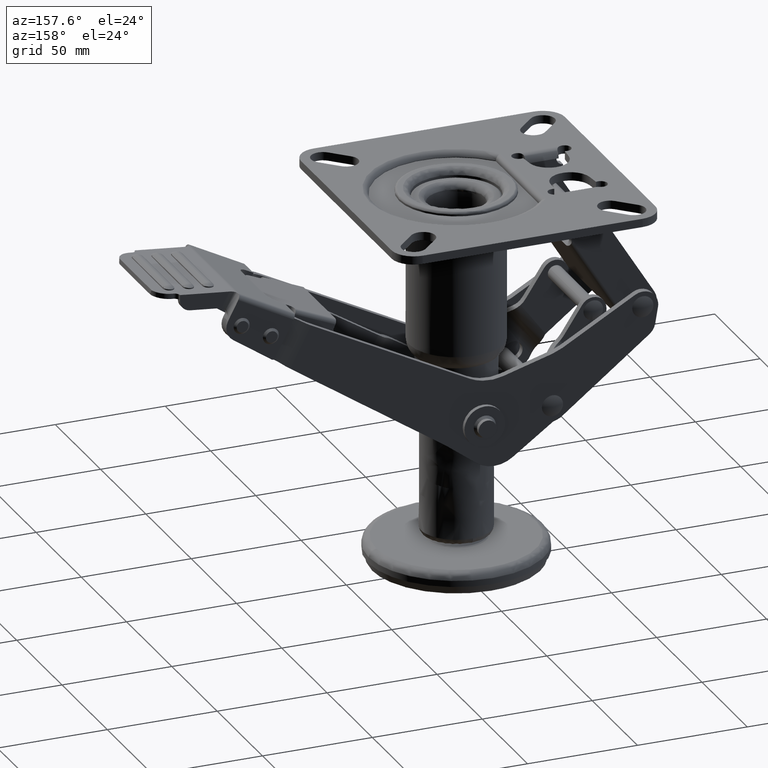
[diagram: clean part render]
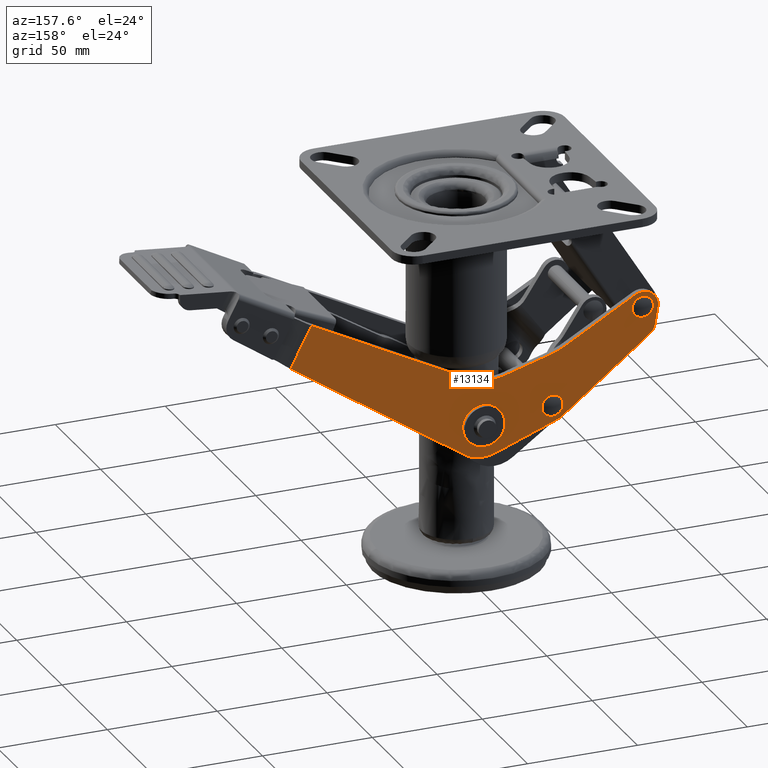
[diagram: same view with one face highlighted and labeled with its STEP entity id]
A machine part, auxiliary view. The second image highlights one B-rep face of the part: STEP entity #13134.
In plain terms, the highlighted face is a freeform B-spline surface patch.
Its self-contained STEP definition (entity closure, byte-faithful):
#2957=CARTESIAN_POINT('',(7.062890213858831,29.500000000000000,-103.373108324120100));
#2958=VERTEX_POINT('',#2957);
#2964=CARTESIAN_POINT('',(0.0,29.500000000000000,-106.649994000000010));
#2965=VERTEX_POINT('',#2964);
#2966=CARTESIAN_POINT('',(7.062890213858831,29.500000000000000,-103.373108324120100));
#2967=CARTESIAN_POINT('',(6.549512193716681,29.500000000000039,-103.980510018220200));
#2968=CARTESIAN_POINT('',(5.395922455383997,29.499999999999890,-105.032994321612410));
#2969=CARTESIAN_POINT('',(3.013068776690119,29.500000000000249,-106.300303740287700));
#2970=CARTESIAN_POINT('',(1.130280303283462,29.499999999999709,-106.651000111019900));
#2971=CARTESIAN_POINT('',(0.0,29.500000000000000,-106.649994000000010));
#2972=B_SPLINE_CURVE_WITH_KNOTS('',3,(#2966,#2967,#2968,#2969,#2970,#2971),.UNSPECIFIED.,.F.,.U.,(4,1,1,4),(0.000000094406132,2.385839442849486,4.646058014318029,8.036476991607966),.UNSPECIFIED.);
#2973=EDGE_CURVE('',#2958,#2965,#2972,.T.);
#2975=CARTESIAN_POINT('',(-9.249999999999568,29.500000000000000,-97.399991171106024));
#2976=VERTEX_POINT('',#2975);
#2977=CARTESIAN_POINT('',(0.0,29.500000000000000,-106.649994000000010));
#2978=CARTESIAN_POINT('',(-1.097428028790853,29.500000000000000,-106.650896840088810));
#2979=CARTESIAN_POINT('',(-2.988711835484776,29.500000000000028,-106.309174592108310));
#2980=CARTESIAN_POINT('',(-5.486905055020262,29.499999999999940,-104.993603564370600));
#2981=CARTESIAN_POINT('',(-7.259882364325334,29.500000000000171,-103.305644808511500));
#2982=CARTESIAN_POINT('',(-8.407140497525562,29.499999999999641,-101.417211837893700));
#2983=CARTESIAN_POINT('',(-9.086523940030100,29.500000000000039,-99.481010370608089));
#2984=CARTESIAN_POINT('',(-9.250200309606207,29.499999999999979,-98.156769708141709));
#2985=CARTESIAN_POINT('',(-9.249999999999568,29.500000000000000,-97.399991171106024));
#2986=B_SPLINE_CURVE_WITH_KNOTS('',3,(#2977,#2978,#2979,#2980,#2981,#2982,#2983,#2984,#2985),.UNSPECIFIED.,.F.,.U.,(4,1,1,1,1,1,4),(0.000000285345372,3.291940182457356,5.675819655048004,8.400125156966372,10.556916937674581,12.259660067080709,14.529958786038890),.UNSPECIFIED.);
#2987=EDGE_CURVE('',#2965,#2976,#2986,.T.);
#2989=CARTESIAN_POINT('',(0.0,29.500000000000000,-88.149994000000007));
#2990=VERTEX_POINT('',#2989);
#2991=CARTESIAN_POINT('',(-9.249999999999568,29.500000000000000,-97.399991171106024));
#2992=CARTESIAN_POINT('',(-9.250569512410587,29.499999999999979,-96.416133653529357));
#2993=CARTESIAN_POINT('',(-8.981728806457717,29.500000000000149,-94.751643678414695));
#2994=CARTESIAN_POINT('',(-7.903838375665460,29.499999999999861,-92.397918054030072));
#2995=CARTESIAN_POINT('',(-6.617910916278687,29.500000000000220,-90.830827887704174));
#2996=CARTESIAN_POINT('',(-5.100164259316101,29.499999999999861,-89.631790090600546));
#2997=CARTESIAN_POINT('',(-3.601340404674745,29.500000000000121,-88.806631032115959));
#2998=CARTESIAN_POINT('',(-1.816228386429284,29.499999999999940,-88.265210151998019));
#2999=CARTESIAN_POINT('',(-0.567573206090180,29.500000000000050,-88.149956341379678));
#3000=CARTESIAN_POINT('',(0.0,29.500000000000000,-88.149994000000007));
#3001=B_SPLINE_CURVE_WITH_KNOTS('',3,(#2991,#2992,#2993,#2994,#2995,#2996,#2997,#2998,#2999,#3000),.UNSPECIFIED.,.F.,.U.,(4,1,1,1,1,1,1,4),(0.000000286316517,2.951380585235373,4.994673728830630,7.718957876282339,8.967706439482008,10.783948716045900,12.827227093254800,14.529955597196080),.UNSPECIFIED.);
#3002=EDGE_CURVE('',#2976,#2990,#3001,.T.);
#3004=CARTESIAN_POINT('',(6.367279222765993,29.500000000000000,-90.690281470120055));
#3005=VERTEX_POINT('',#3004);
#3006=CARTESIAN_POINT('',(0.0,29.500000000000000,-88.149994000000007));
#3007=CARTESIAN_POINT('',(1.024264964496176,29.500000000000011,-88.149281630587126));
#3008=CARTESIAN_POINT('',(2.706324220617949,29.500000000000000,-88.432467324418610));
#3009=CARTESIAN_POINT('',(4.837418749840455,29.499999999999961,-89.433092971154082));
#3010=CARTESIAN_POINT('',(5.889767463451101,29.499999999999979,-90.237003969438874));
#3011=CARTESIAN_POINT('',(6.367279222765993,29.500000000000000,-90.690281470120055));
#3012=B_SPLINE_CURVE_WITH_KNOTS('',3,(#3006,#3007,#3008,#3009,#3010,#3011),.UNSPECIFIED.,.F.,.U.,(4,1,1,4),(0.000000070174580,3.072506540100728,5.047640986061214,7.022809325650047),.UNSPECIFIED.);
#3013=EDGE_CURVE('',#2990,#3005,#3012,.T.);
#3098=CARTESIAN_POINT('',(9.249999999999567,29.500000000000000,-97.399996828894018));
#3099=VERTEX_POINT('',#3098);
#3100=CARTESIAN_POINT('',(6.367279222765993,29.500000000000000,-90.690281470120055));
#3101=CARTESIAN_POINT('',(7.162133510237164,29.499999999999979,-91.443344995774794));
#3102=CARTESIAN_POINT('',(8.196119603987395,29.500000000000021,-92.852030779671864));
#3103=CARTESIAN_POINT('',(9.070390396258159,29.499999999999989,-95.210537110543726));
#3104=CARTESIAN_POINT('',(9.250214004977405,29.500000000000000,-96.617986744154422));
#3105=CARTESIAN_POINT('',(9.249999999999567,29.500000000000000,-97.399996828894018));
#3106=B_SPLINE_CURVE_WITH_KNOTS('',3,(#3100,#3101,#3102,#3103,#3104,#3105),.UNSPECIFIED.,.F.,.U.,(4,1,1,4),(0.000000076496439,3.284414565167383,5.161153737870016,7.507150443955626),.UNSPECIFIED.);
#3107=EDGE_CURVE('',#3005,#3099,#3106,.T.);
#3109=CARTESIAN_POINT('',(9.249999999999567,29.500000000000000,-97.399996828894018));
#3110=CARTESIAN_POINT('',(9.250635497962643,29.500000000000050,-98.448530360486728));
#3111=CARTESIAN_POINT('',(8.976844054873409,29.499999999999890,-100.037583985707200));
#3112=CARTESIAN_POINT('',(8.075054284154113,29.500000000000188,-102.014539358877500));
#3113=CARTESIAN_POINT('',(7.434204650124272,29.499999999999890,-102.934146378835390));
#3114=CARTESIAN_POINT('',(7.062890213858831,29.500000000000000,-103.373108324120100));
#3115=B_SPLINE_CURVE_WITH_KNOTS('',3,(#3109,#3110,#3111,#3112,#3113,#3114),.UNSPECIFIED.,.F.,.U.,(4,1,1,4),(0.000000053551134,3.145320131753635,4.768649614750461,6.493481002571926),.UNSPECIFIED.);
#3116=EDGE_CURVE('',#3099,#2958,#3115,.T.);
#7311=CARTESIAN_POINT('',(-31.619207169563001,29.499996670207601,-89.190658664743296));
#7312=VERTEX_POINT('',#7311);
#7313=CARTESIAN_POINT('',(-26.797382006535880,29.499996670207601,-94.012487751806731));
#7314=VERTEX_POINT('',#7313);
#7315=CARTESIAN_POINT('',(-31.619207169563001,29.499996670207601,-89.190658664743296));
#7316=CARTESIAN_POINT('',(-30.987904200579312,29.499996670207601,-89.189992509171105));
#7317=CARTESIAN_POINT('',(-30.041687858251699,29.499996670207629,-89.379279047355581));
#7318=CARTESIAN_POINT('',(-28.958033571158619,29.499996670207590,-89.958809905427330));
#7319=CARTESIAN_POINT('',(-28.185171004608740,29.499996670207690,-90.577268814018780));
#7320=CARTESIAN_POINT('',(-27.554813179248701,29.499996670207409,-91.345342208305368));
#7321=CARTESIAN_POINT('',(-26.966639173122310,29.499996670207839,-92.513788800124189));
#7322=CARTESIAN_POINT('',(-26.796816262795229,29.499996670207889,-93.420658835838836));
#7323=CARTESIAN_POINT('',(-26.797382006535880,29.499996670207601,-94.012487751806731));
#7324=B_SPLINE_CURVE_WITH_KNOTS('',3,(#7315,#7316,#7317,#7318,#7319,#7320,#7321,#7322,#7323),.UNSPECIFIED.,.F.,.U.,(4,1,1,1,1,1,4),(0.000000260892483,1.893575646253134,2.840388757906203,3.668828502947448,4.852274009876938,5.799073758397205,7.574297530733365),.UNSPECIFIED.);
#7325=EDGE_CURVE('',#7312,#7314,#7324,.T.);
#7327=CARTESIAN_POINT('',(-31.619207169563001,29.499996670207601,-98.834308990800736));
#7328=VERTEX_POINT('',#7327);
#7329=CARTESIAN_POINT('',(-26.797382006535880,29.499996670207601,-94.012487751806731));
#7330=CARTESIAN_POINT('',(-26.796709697238931,29.499996670207551,-94.643775936521138));
#7331=CARTESIAN_POINT('',(-27.009668092115600,29.499996670207651,-95.708328662475665));
#7332=CARTESIAN_POINT('',(-27.791484670944161,29.499996670207629,-97.049736738487013));
#7333=CARTESIAN_POINT('',(-28.686815685654452,29.499996670207430,-97.902098462971864));
#7334=CARTESIAN_POINT('',(-29.962998670643842,29.499996670207668,-98.625066266896411));
#7335=CARTESIAN_POINT('',(-30.948387403958861,29.499996670207551,-98.835206571549989));
#7336=CARTESIAN_POINT('',(-31.619207169563001,29.499996670207601,-98.834308990800736));
#7337=B_SPLINE_CURVE_WITH_KNOTS('',3,(#7329,#7330,#7331,#7332,#7333,#7334,#7335,#7336),.UNSPECIFIED.,.F.,.U.,(4,1,1,1,1,4),(0.000000266262523,1.893574544734312,3.195468122284443,4.615552219330390,5.562369480960832,7.574293107321366),.UNSPECIFIED.);
#7338=EDGE_CURVE('',#7314,#7328,#7337,.T.);
#7340=CARTESIAN_POINT('',(-36.441032332590133,29.499996670207601,-94.012479903737272));
#7341=VERTEX_POINT('',#7340);
#7342=CARTESIAN_POINT('',(-31.619207169563001,29.499996670207601,-98.834308990800736));
#7343=CARTESIAN_POINT('',(-31.974225537285822,29.499996670207640,-98.834356218493880));
#7344=CARTESIAN_POINT('',(-32.763202574486797,29.499996670207540,-98.746827018595468));
#7345=CARTESIAN_POINT('',(-33.994693143356933,29.499996670207640,-98.289369622145941));
#7346=CARTESIAN_POINT('',(-35.012125680270870,29.499996670207590,-97.515176006102266));
#7347=CARTESIAN_POINT('',(-35.719169284799293,29.499996670207661,-96.608760766015820));
#7348=CARTESIAN_POINT('',(-36.271789473175282,29.499996670207530,-95.511194667102643));
#7349=CARTESIAN_POINT('',(-36.441596836449548,29.499996670207722,-94.604303477499386));
#7350=CARTESIAN_POINT('',(-36.441032332590133,29.499996670207601,-94.012479903737272));
#7351=B_SPLINE_CURVE_WITH_KNOTS('',3,(#7342,#7343,#7344,#7345,#7346,#7347,#7348,#7349,#7350),.UNSPECIFIED.,.F.,.U.,(4,1,1,1,1,1,4),(0.000000260873954,1.065097006018979,2.366990077338882,3.905464940709167,4.852274009870703,5.799073758393897,7.574297530733509),.UNSPECIFIED.);
#7352=EDGE_CURVE('',#7328,#7341,#7351,.T.);
#7354=CARTESIAN_POINT('',(-36.441032332590133,29.499996670207601,-94.012479903737272));
#7355=CARTESIAN_POINT('',(-36.441688578126943,29.499996670207590,-93.381201487735638));
#7356=CARTESIAN_POINT('',(-36.228779942428368,29.499996670207640,-92.316617770052048));
#7357=CARTESIAN_POINT('',(-35.446902706445307,29.499996670207551,-90.975250011171340));
#7358=CARTESIAN_POINT('',(-34.551611758224666,29.499996670207651,-90.122859881393282));
#7359=CARTESIAN_POINT('',(-33.275408995396504,29.499996670207551,-89.399906166094340));
#7360=CARTESIAN_POINT('',(-32.290029097080122,29.499996670207668,-89.189759542874398));
#7361=CARTESIAN_POINT('',(-31.619207169563001,29.499996670207601,-89.190658664743296));
#7362=B_SPLINE_CURVE_WITH_KNOTS('',3,(#7354,#7355,#7356,#7357,#7358,#7359,#7360,#7361),.UNSPECIFIED.,.F.,.U.,(4,1,1,1,1,4),(0.000000266263443,1.893574544734063,3.195468122283923,4.615552219330244,5.562369480960763,7.574293107321358),.UNSPECIFIED.);
#7363=EDGE_CURVE('',#7341,#7312,#7362,.T.);
#7474=CARTESIAN_POINT('',(-72.739775733256096,29.499996670207601,-50.567183022548072));
#7475=VERTEX_POINT('',#7474);
#7476=CARTESIAN_POINT('',(-67.917950570228967,29.499996670207601,-55.389012109611507));
#7477=VERTEX_POINT('',#7476);
#7478=CARTESIAN_POINT('',(-72.739775733256096,29.499996670207601,-50.567183022548072));
#7479=CARTESIAN_POINT('',(-72.305829193979349,29.499996670207612,-50.567015442658729));
#7480=CARTESIAN_POINT('',(-71.595855561127422,29.499996670207619,-50.663743611974290));
#7481=CARTESIAN_POINT('',(-70.593764626506513,29.499996670207558,-51.036211317255351));
#7482=CARTESIAN_POINT('',(-69.647525014307234,29.499996670207668,-51.619068620041702));
#7483=CARTESIAN_POINT('',(-68.850183091057261,29.499996670207558,-52.456621887492133));
#7484=CARTESIAN_POINT('',(-68.127176374458983,29.499996670207729,-53.732796860825282));
#7485=CARTESIAN_POINT('',(-67.917058734144447,29.499996670207590,-54.718194108255659));
#7486=CARTESIAN_POINT('',(-67.917950570228967,29.499996670207601,-55.389012109611507));
#7487=B_SPLINE_CURVE_WITH_KNOTS('',3,(#7478,#7479,#7480,#7481,#7482,#7483,#7484,#7485,#7486),.UNSPECIFIED.,.F.,.U.,(4,1,1,1,1,1,4),(0.000000260891430,1.301807421780419,2.130284548815833,3.195469984052134,4.615554919485231,5.562372730054818,7.574297530733436),.UNSPECIFIED.);
#7488=EDGE_CURVE('',#7475,#7477,#7487,.T.);
#7490=CARTESIAN_POINT('',(-72.739775733256096,29.499996670207601,-60.210833348605533));
#7491=VERTEX_POINT('',#7490);
#7492=CARTESIAN_POINT('',(-67.917950570228967,29.499996670207601,-55.389012109611507));
#7493=CARTESIAN_POINT('',(-67.917613737054694,29.499996670207601,-55.941333344972513));
#7494=CARTESIAN_POINT('',(-68.102934727025826,29.499996670207558,-57.006223616629221));
#7495=CARTESIAN_POINT('',(-68.777106100128123,29.499996670207690,-58.231285861576673));
#7496=CARTESIAN_POINT('',(-69.570021083884527,29.499996670207430,-59.063645035248392));
#7497=CARTESIAN_POINT('',(-70.347754412796405,29.499996670207899,-59.611455583759650));
#7498=CARTESIAN_POINT('',(-71.398696525790271,29.499996670207452,-60.077336682926699));
#7499=CARTESIAN_POINT('',(-72.226903375747440,29.499996670207640,-60.211152837886488));
#7500=CARTESIAN_POINT('',(-72.739775733256096,29.499996670207601,-60.210833348605533));
#7501=B_SPLINE_CURVE_WITH_KNOTS('',3,(#7492,#7493,#7494,#7495,#7496,#7497,#7498,#7499,#7500),.UNSPECIFIED.,.F.,.U.,(4,1,1,1,1,1,4),(0.000000266252913,1.656877467913144,3.195468122278951,4.142125373670805,5.088951154486039,6.035782042711192,7.574293107321385),.UNSPECIFIED.);
#7502=EDGE_CURVE('',#7477,#7491,#7501,.T.);
#7504=CARTESIAN_POINT('',(-77.561600896283224,29.499996670207601,-55.389004261542063));
#7505=VERTEX_POINT('',#7504);
#7506=CARTESIAN_POINT('',(-72.739775733256096,29.499996670207601,-60.210833348605533));
#7507=CARTESIAN_POINT('',(-73.292097982726844,29.499996670207679,-60.211170177337067));
#7508=CARTESIAN_POINT('',(-74.356963137572450,29.499996670207501,-60.025831349412250));
#7509=CARTESIAN_POINT('',(-75.792249003193902,29.499996670207661,-59.236210423043410));
#7510=CARTESIAN_POINT('',(-76.733047496977420,29.499996670207690,-58.197879364209243));
#7511=CARTESIAN_POINT('',(-77.392338111118519,29.499996670207519,-56.887700437521062));
#7512=CARTESIAN_POINT('',(-77.562154722893894,29.499996670207189,-55.980826166161350));
#7513=CARTESIAN_POINT('',(-77.561600896283224,29.499996670207601,-55.389004261542063));
#7514=B_SPLINE_CURVE_WITH_KNOTS('',3,(#7506,#7507,#7508,#7509,#7510,#7511,#7512,#7513),.UNSPECIFIED.,.F.,.U.,(4,1,1,1,1,4),(0.000000260901882,1.656878431710362,3.195469984058304,4.852274009879024,5.799073758398915,7.574297530733296),.UNSPECIFIED.);
#7515=EDGE_CURVE('',#7491,#7505,#7514,.T.);
#7517=CARTESIAN_POINT('',(-77.561600896283224,29.499996670207601,-55.389004261542063));
#7518=CARTESIAN_POINT('',(-77.562013492150882,29.499996670207601,-54.836661789420383));
#7519=CARTESIAN_POINT('',(-77.410749541628235,29.499996670207629,-53.969106388915620));
#7520=CARTESIAN_POINT('',(-76.817671852077552,29.499996670207590,-52.714855563503917));
#7521=CARTESIAN_POINT('',(-75.968938764083376,29.499996670207601,-51.705948639429756));
#7522=CARTESIAN_POINT('',(-74.553777795863724,29.499996670207629,-50.809946573062717));
#7523=CARTESIAN_POINT('',(-73.410559791895082,29.499996670207580,-50.566302331843502));
#7524=CARTESIAN_POINT('',(-72.739775733256096,29.499996670207601,-50.567183022548072));
#7525=B_SPLINE_CURVE_WITH_KNOTS('',3,(#7517,#7518,#7519,#7520,#7521,#7522,#7523,#7524),.UNSPECIFIED.,.F.,.U.,(4,1,1,1,1,4),(0.000000266265262,1.656877467921686,2.603673269111195,4.142125373675602,5.562369480960834,7.574293107321367),.UNSPECIFIED.);
#7526=EDGE_CURVE('',#7505,#7475,#7525,.T.);
#9585=CARTESIAN_POINT('',(87.545050753605111,29.500000000000000,-56.817024014597301));
#9586=VERTEX_POINT('',#9585);
#9595=CARTESIAN_POINT('',(77.991574225383900,29.500000000000000,-38.523240494948098));
#9596=VERTEX_POINT('',#9595);
#9597=CARTESIAN_POINT('',(87.545050753605111,29.500000000000000,-56.817024014597301));
#9598=CARTESIAN_POINT('',(77.991574225383900,29.500000000000000,-38.523240494948098));
#9599=QUASI_UNIFORM_CURVE('',1,(#9597,#9598),.UNSPECIFIED.,.F.,.U.);
#9600=EDGE_CURVE('',#9586,#9596,#9599,.T.);
#9756=CARTESIAN_POINT('',(-35.916082887474403,29.500000000000000,-99.538508540494206));
#9757=VERTEX_POINT('',#9756);
#9758=CARTESIAN_POINT('',(-34.091929999999998,29.500000000000000,-100.561329000000000));
#9759=VERTEX_POINT('',#9758);
#9760=CARTESIAN_POINT('',(-35.916082887474403,29.500000000000000,-99.538508540494206));
#9761=CARTESIAN_POINT('',(-35.363823069482649,29.500000000000000,-99.968231902416505));
#9762=CARTESIAN_POINT('',(-34.746659379672323,29.500000000000028,-100.314361615611200));
#9763=CARTESIAN_POINT('',(-34.091929999999998,29.500000000000000,-100.561329000000000));
#9764=B_SPLINE_CURVE_WITH_KNOTS('',3,(#9760,#9761,#9762,#9763),.UNSPECIFIED.,.F.,.U.,(4,4),(9.783498E-009,2.099231881581437),.UNSPECIFIED.);
#9765=EDGE_CURVE('',#9757,#9759,#9764,.T.);
#9796=CARTESIAN_POINT('',(-75.758461491749003,29.500000000000000,-68.477507018356604));
#9797=VERTEX_POINT('',#9796);
#9798=CARTESIAN_POINT('',(-75.758461491749003,29.500000000000000,-68.477507018356604));
#9799=CARTESIAN_POINT('',(-35.916082887474403,29.500000000000000,-99.538508540494206));
#9800=QUASI_UNIFORM_CURVE('',1,(#9798,#9799),.UNSPECIFIED.,.F.,.U.);
#9801=EDGE_CURVE('',#9797,#9757,#9800,.T.);
#9833=CARTESIAN_POINT('',(-78.355420019964285,29.500000000000000,-64.129584882474305));
#9834=VERTEX_POINT('',#9833);
#9835=CARTESIAN_POINT('',(-78.355420019964285,29.500000000000000,-64.129584882474305));
#9836=CARTESIAN_POINT('',(-78.274117603581630,29.499999999999989,-64.608543822587706));
#9837=CARTESIAN_POINT('',(-77.996653479724060,29.500000000000050,-65.601685577624778));
#9838=CARTESIAN_POINT('',(-77.175120469758753,29.499999999999940,-67.134305108734296));
#9839=CARTESIAN_POINT('',(-76.312045585348557,29.500000000000099,-68.046238688501845));
#9840=CARTESIAN_POINT('',(-75.758461491749003,29.500000000000000,-68.477507018356604));
#9841=B_SPLINE_CURVE_WITH_KNOTS('',3,(#9835,#9836,#9837,#9838,#9839,#9840),.UNSPECIFIED.,.F.,.U.,(4,1,1,4),(0.000000030997393,1.457462923863167,3.076865071732427,5.182090099489219),.UNSPECIFIED.);
#9842=EDGE_CURVE('',#9834,#9797,#9841,.T.);
#9869=CARTESIAN_POINT('',(-79.641049957649400,29.500000000000000,-56.561333249309712));
#9870=VERTEX_POINT('',#9869);
#9871=CARTESIAN_POINT('',(-79.641049957649400,29.500000000000000,-56.561333249309712));
#9872=CARTESIAN_POINT('',(-78.355420019964285,29.500000000000000,-64.129584882474305));
#9873=QUASI_UNIFORM_CURVE('',1,(#9871,#9872),.UNSPECIFIED.,.F.,.U.);
#9874=EDGE_CURVE('',#9870,#9834,#9873,.T.);
#9906=CARTESIAN_POINT('',(-69.257081732898300,29.500000000000000,-49.316879614807512));
#9907=VERTEX_POINT('',#9906);
#9908=CARTESIAN_POINT('',(-69.257081732898300,29.500000000000000,-49.316879614807512));
#9909=CARTESIAN_POINT('',(-69.685856417715783,29.499999999999979,-49.070897197625627));
#9910=CARTESIAN_POINT('',(-70.709533303351961,29.500000000000060,-48.620034715142367));
#9911=CARTESIAN_POINT('',(-72.223196978213323,29.500000000000021,-48.350091256531350));
#9912=CARTESIAN_POINT('',(-73.875909360210244,29.500000000000039,-48.423208671267702));
#9913=CARTESIAN_POINT('',(-75.560544040577938,29.499999999999790,-48.879863154728547));
#9914=CARTESIAN_POINT('',(-77.054495527148589,29.500000000000391,-49.790626780350351));
#9915=CARTESIAN_POINT('',(-78.282306683935857,29.499999999999790,-51.019277859311593));
#9916=CARTESIAN_POINT('',(-79.082630568896604,29.499999999999801,-52.283248983629129));
#9917=CARTESIAN_POINT('',(-79.544989012909042,29.500000000000110,-53.612458080835822));
#9918=CARTESIAN_POINT('',(-79.778639864084482,29.499999999999929,-54.997014530762840));
#9919=CARTESIAN_POINT('',(-79.744755429266363,29.500000000000039,-55.952172389855598));
#9920=CARTESIAN_POINT('',(-79.641049957649400,29.500000000000000,-56.561333249309712));
#9921=B_SPLINE_CURVE_WITH_KNOTS('',3,(#9908,#9909,#9910,#9911,#9912,#9913,#9914,#9915,#9916,#9917,#9918,#9919,#9920),.UNSPECIFIED.,.F.,.U.,(4,1,1,1,1,1,1,1,1,1,4),(0.000000583188646,1.483008435530474,3.336831998400857,4.572717058152390,6.426566880837481,8.527415984754782,9.763241099960744,11.617101718654650,12.976600342819170,13.965326359453780,15.819044798083610),.UNSPECIFIED.);
#9922=EDGE_CURVE('',#9907,#9870,#9921,.T.);
#9956=CARTESIAN_POINT('',(-36.121780000000001,29.500000000000000,-68.148086999999990));
#9957=VERTEX_POINT('',#9956);
#9958=CARTESIAN_POINT('',(-36.121780000000001,29.500000000000000,-68.148086999999990));
#9959=CARTESIAN_POINT('',(-69.257081732898300,29.500000000000000,-49.316879614807512));
#9960=QUASI_UNIFORM_CURVE('',1,(#9958,#9959),.UNSPECIFIED.,.F.,.U.);
#9961=EDGE_CURVE('',#9957,#9907,#9960,.T.);
#9993=CARTESIAN_POINT('',(-31.590869999665749,29.500000000000000,-70.060631000096890));
#9994=VERTEX_POINT('',#9993);
#9995=CARTESIAN_POINT('',(-36.121780000000001,29.500000000000000,-68.148086999999990));
#9996=CARTESIAN_POINT('',(-34.693352550260578,29.499999999999989,-68.960184628512664));
#9997=CARTESIAN_POINT('',(-33.169124032190510,29.500000000000082,-69.603479804960728));
#9998=CARTESIAN_POINT('',(-31.590869999665749,29.500000000000000,-70.060631000096890));
#9999=B_SPLINE_CURVE_WITH_KNOTS('',3,(#9995,#9996,#9997,#9998),.UNSPECIFIED.,.F.,.U.,(4,4),(3.549657E-009,4.929346446035098),.UNSPECIFIED.);
#10000=EDGE_CURVE('',#9957,#9994,#9999,.T.);
#10025=CARTESIAN_POINT('',(-9.168170000000000,29.500000000000000,-76.558491000000004));
#10026=VERTEX_POINT('',#10025);
#10027=CARTESIAN_POINT('',(-9.168170000000000,29.500000000000000,-76.558491000000004));
#10028=CARTESIAN_POINT('',(-31.590869999665749,29.500000000000000,-70.060631000096890));
#10029=QUASI_UNIFORM_CURVE('',1,(#10027,#10028),.UNSPECIFIED.,.F.,.U.);
#10030=EDGE_CURVE('',#10026,#9994,#10029,.T.);
#10062=CARTESIAN_POINT('',(6.211179989816660,29.500000000000000,-75.099251005189103));
#10063=VERTEX_POINT('',#10062);
#10064=CARTESIAN_POINT('',(-9.168170000000000,29.500000000000000,-76.558491000000004));
#10065=CARTESIAN_POINT('',(-7.348090428346720,29.500000000000099,-77.086638772073684));
#10066=CARTESIAN_POINT('',(-3.975362554933462,29.499999999999819,-77.583788090999533));
#10067=CARTESIAN_POINT('',(1.303881886468630,29.500000000000309,-77.083034144475448));
#10068=CARTESIAN_POINT('',(4.522901323735121,29.499999999999730,-75.960212134050010));
#10069=CARTESIAN_POINT('',(6.211179989816660,29.500000000000000,-75.099251005189103));
#10070=B_SPLINE_CURVE_WITH_KNOTS('',3,(#10064,#10065,#10066,#10067,#10068,#10069),.UNSPECIFIED.,.F.,.U.,(4,1,1,4),(0.000000040835566,5.685312748856438,10.134631033500041,15.819943741520580),.UNSPECIFIED.);
#10071=EDGE_CURVE('',#10026,#10063,#10070,.T.);
#10124=CARTESIAN_POINT('',(8.347470000000000,29.500000000000000,-109.862774000000000));
#10125=VERTEX_POINT('',#10124);
#10131=CARTESIAN_POINT('',(8.347470000000000,29.500000000000000,-109.862774000000000));
#10132=CARTESIAN_POINT('',(87.545050753605111,29.500000000000000,-56.817024014597301));
#10133=QUASI_UNIFORM_CURVE('',1,(#10131,#10132),.UNSPECIFIED.,.F.,.U.);
#10134=EDGE_CURVE('',#10125,#9586,#10133,.T.);
#10155=CARTESIAN_POINT('',(-5.298955763659250,29.500000000000000,-111.432976446602790));
#10156=VERTEX_POINT('',#10155);
#10157=CARTESIAN_POINT('',(-5.298955763659250,29.500000000000000,-111.432976446602790));
#10158=CARTESIAN_POINT('',(-3.839149557957465,29.500000000000011,-111.985042777553300));
#10159=CARTESIAN_POINT('',(-1.261367949995165,29.500000000000021,-112.519541187193300));
#10160=CARTESIAN_POINT('',(2.543535300097116,29.499999999999890,-112.309665542483400));
#10161=CARTESIAN_POINT('',(5.638035392261446,29.500000000000430,-111.426264068338100));
#10162=CARTESIAN_POINT('',(7.544848852376449,29.499999999999581,-110.400464529308810));
#10163=CARTESIAN_POINT('',(8.347470000000000,29.500000000000000,-109.862774000000000));
#10164=B_SPLINE_CURVE_WITH_KNOTS('',3,(#10157,#10158,#10159,#10160,#10161,#10162,#10163),.UNSPECIFIED.,.F.,.U.,(4,1,1,1,4),(0.000000056120701,4.681838027266924,7.803023490234399,11.370183441063180,14.268455397681130),.UNSPECIFIED.);
#10165=EDGE_CURVE('',#10156,#10125,#10164,.T.);
#10194=CARTESIAN_POINT('',(-34.091929999999998,29.500000000000000,-100.561329000000000));
#10195=CARTESIAN_POINT('',(-5.298955763659250,29.500000000000000,-111.432976446602790));
#10196=QUASI_UNIFORM_CURVE('',1,(#10194,#10195),.UNSPECIFIED.,.F.,.U.);
#10197=EDGE_CURVE('',#9759,#10156,#10196,.T.);
#10439=CARTESIAN_POINT('',(77.991574225383900,29.500000000000000,-38.523240494948098));
#10440=CARTESIAN_POINT('',(6.211179989816660,29.500000000000000,-75.099251005189103));
#10441=QUASI_UNIFORM_CURVE('',1,(#10439,#10440),.UNSPECIFIED.,.F.,.U.);
#10442=EDGE_CURVE('',#9596,#10063,#10441,.T.);
#13093=CARTESIAN_POINT('',(-88.094628015466441,29.500000000000000,-116.089096380594200));
#13094=CARTESIAN_POINT('',(95.900883260923280,29.500000000000000,-116.089096380594200));
#13095=CARTESIAN_POINT('',(-88.094628015466441,29.500000000000000,-34.833144358242293));
#13096=CARTESIAN_POINT('',(95.900883260923280,29.500000000000000,-34.833144358242293));
#13097=B_SPLINE_SURFACE_WITH_KNOTS('',1,1,((#13093,#13095),(#13094,#13096)),.UNSPECIFIED.,.F.,.F.,.U.,(2,2),(2,2),(0.0,183.995511276389690),(0.0,81.255952022351892),.UNSPECIFIED.);
#13098=ORIENTED_EDGE('',*,*,#10134,.F.);
#13099=ORIENTED_EDGE('',*,*,#10165,.F.);
#13100=ORIENTED_EDGE('',*,*,#10197,.F.);
#13101=ORIENTED_EDGE('',*,*,#9765,.F.);
#13102=ORIENTED_EDGE('',*,*,#9801,.F.);
#13103=ORIENTED_EDGE('',*,*,#9842,.F.);
#13104=ORIENTED_EDGE('',*,*,#9874,.F.);
#13105=ORIENTED_EDGE('',*,*,#9922,.F.);
#13106=ORIENTED_EDGE('',*,*,#9961,.F.);
#13107=ORIENTED_EDGE('',*,*,#10000,.T.);
#13108=ORIENTED_EDGE('',*,*,#10030,.F.);
#13109=ORIENTED_EDGE('',*,*,#10071,.T.);
#13110=ORIENTED_EDGE('',*,*,#10442,.F.);
#13111=ORIENTED_EDGE('',*,*,#9600,.F.);
#13112=EDGE_LOOP('',(#13098,#13099,#13100,#13101,#13102,#13103,#13104,#13105,#13106,#13107,#13108,#13109,#13110,#13111));
#13113=FACE_OUTER_BOUND('',#13112,.T.);
#13114=ORIENTED_EDGE('',*,*,#2987,.F.);
#13115=ORIENTED_EDGE('',*,*,#2973,.F.);
#13116=ORIENTED_EDGE('',*,*,#3116,.F.);
#13117=ORIENTED_EDGE('',*,*,#3107,.F.);
#13118=ORIENTED_EDGE('',*,*,#3013,.F.);
#13119=ORIENTED_EDGE('',*,*,#3002,.F.);
#13120=EDGE_LOOP('',(#13114,#13115,#13116,#13117,#13118,#13119));
#13121=FACE_BOUND('',#13120,.T.);
#13122=ORIENTED_EDGE('',*,*,#7488,.F.);
#13123=ORIENTED_EDGE('',*,*,#7526,.F.);
#13124=ORIENTED_EDGE('',*,*,#7515,.F.);
#13125=ORIENTED_EDGE('',*,*,#7502,.F.);
#13126=EDGE_LOOP('',(#13122,#13123,#13124,#13125));
#13127=FACE_BOUND('',#13126,.T.);
#13128=ORIENTED_EDGE('',*,*,#7325,.F.);
#13129=ORIENTED_EDGE('',*,*,#7363,.F.);
#13130=ORIENTED_EDGE('',*,*,#7352,.F.);
#13131=ORIENTED_EDGE('',*,*,#7338,.F.);
#13132=EDGE_LOOP('',(#13128,#13129,#13130,#13131));
#13133=FACE_BOUND('',#13132,.T.);
#13134=ADVANCED_FACE('',(#13113,#13121,#13127,#13133),#13097,.F.);